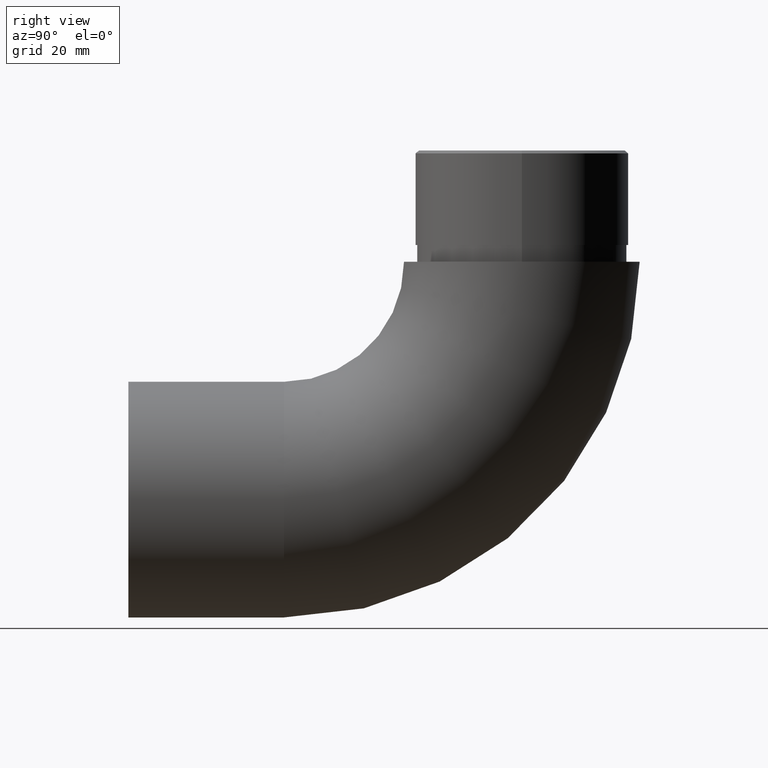
[diagram: clean part render]
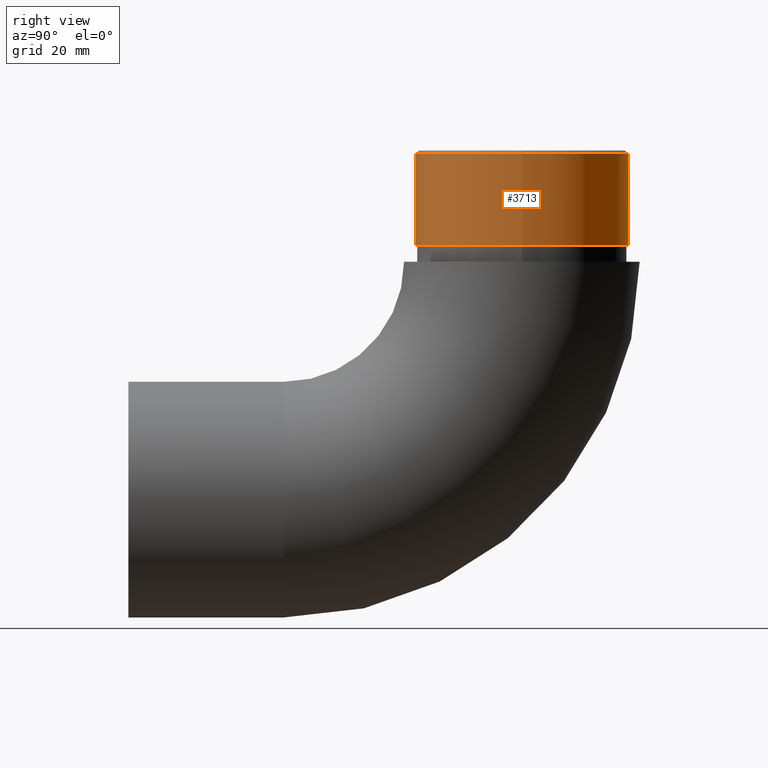
[diagram: same view with one face highlighted and labeled with its STEP entity id]
A machine part, right view. The second image highlights one B-rep face of the part: STEP entity #3713.
In plain terms, the highlighted cylindrical surface (bore or boss wall) has radius 19.15 mm, axis along (-0, -0, -1).
Its self-contained STEP definition (entity closure, byte-faithful):
#535 = DIRECTION ( 'NONE',  ( -1.000000000000000000, 0.0000000000000000000, 0.0000000000000000000 ) ) ;
#641 = CARTESIAN_POINT ( 'NONE',  ( 0.0000000000000000000, 70.80000000000001100, 45.79999999999999700 ) ) ;
#1382 = CIRCLE ( 'NONE', #4165, 19.15000000000000200 ) ;
#1425 = AXIS2_PLACEMENT_3D ( 'NONE', #10282, #11502, #535 ) ;
#2939 = FACE_OUTER_BOUND ( 'NONE', #12647, .T. ) ;
#3297 = FACE_OUTER_BOUND ( 'NONE', #10863, .T. ) ;
#3713 = ADVANCED_FACE ( 'NONE', ( #3297, #2939 ), #13777, .T. ) ;
#4165 = AXIS2_PLACEMENT_3D ( 'NONE', #8050, #11250, #10227 ) ;
#4703 = CARTESIAN_POINT ( 'NONE',  ( 19.15000000000000200, 70.80000000000001100, 62.29999999999997600 ) ) ;
#4824 = VERTEX_POINT ( 'NONE', #6900 ) ;
#5742 = ORIENTED_EDGE ( 'NONE', *, *, #11176, .T. ) ;
#6900 = CARTESIAN_POINT ( 'NONE',  ( 19.15000000000000200, 70.80000000000001100, 45.79999999999999700 ) ) ;
#7178 = DIRECTION ( 'NONE',  ( 0.0000000000000000000, 0.0000000000000000000, 1.000000000000000000 ) ) ;
#8050 = CARTESIAN_POINT ( 'NONE',  ( 0.0000000000000000000, 70.80000000000001100, 62.29999999999997600 ) ) ;
#8082 = VERTEX_POINT ( 'NONE', #4703 ) ;
#8805 = CIRCLE ( 'NONE', #9956, 19.15000000000000200 ) ;
#9956 = AXIS2_PLACEMENT_3D ( 'NONE', #641, #7178, #10485 ) ;
#10227 = DIRECTION ( 'NONE',  ( 1.000000000000000000, 0.0000000000000000000, 0.0000000000000000000 ) ) ;
#10282 = CARTESIAN_POINT ( 'NONE',  ( 0.0000000000000000000, 70.80000000000001100, 62.79999999999999700 ) ) ;
#10485 = DIRECTION ( 'NONE',  ( 1.000000000000000000, 0.0000000000000000000, 0.0000000000000000000 ) ) ;
#10863 = EDGE_LOOP ( 'NONE', ( #12789 ) ) ;
#11176 = EDGE_CURVE ( 'NONE', #4824, #4824, #8805, .T. ) ;
#11250 = DIRECTION ( 'NONE',  ( 0.0000000000000000000, 0.0000000000000000000, -1.000000000000000000 ) ) ;
#11502 = DIRECTION ( 'NONE',  ( -0.0000000000000000000, -0.0000000000000000000, -1.000000000000000000 ) ) ;
#12647 = EDGE_LOOP ( 'NONE', ( #5742 ) ) ;
#12789 = ORIENTED_EDGE ( 'NONE', *, *, #13344, .T. ) ;
#13344 = EDGE_CURVE ( 'NONE', #8082, #8082, #1382, .T. ) ;
#13777 = CYLINDRICAL_SURFACE ( 'NONE', #1425, 19.15000000000000200 ) ;